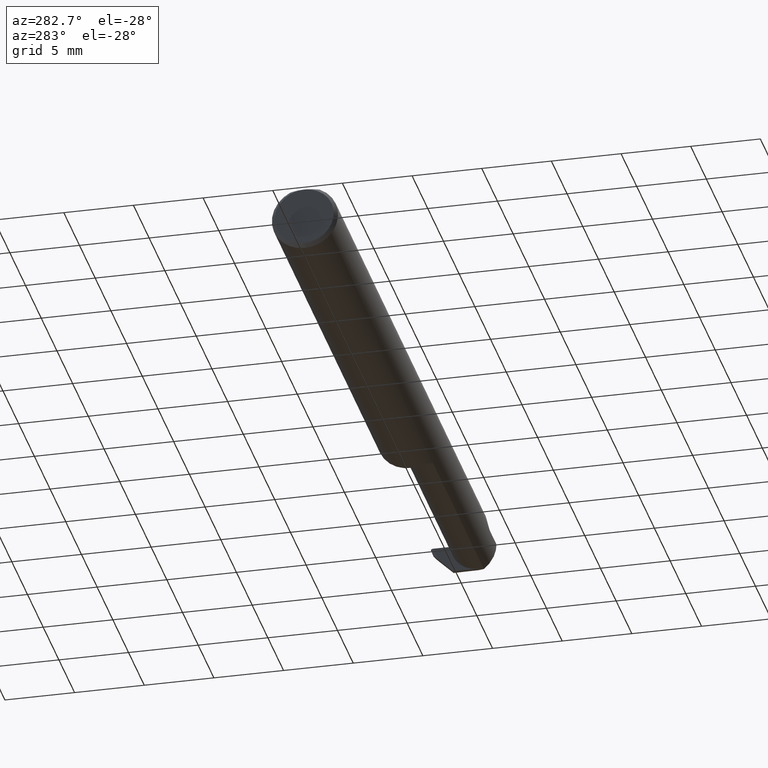
[diagram: clean part render]
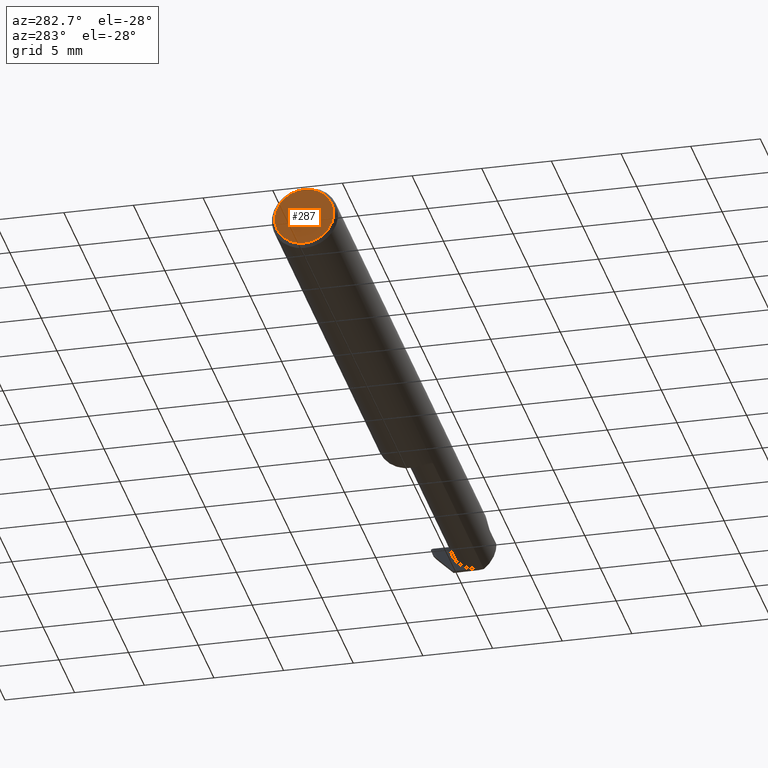
[diagram: same view with one face highlighted and labeled with its STEP entity id]
A machine part, auxiliary view. The second image highlights one B-rep face of the part: STEP entity #287.
In plain terms, the highlighted planar face has unit normal (1, 0, 0).
Its self-contained STEP definition (entity closure, byte-faithful):
#23 = FACE_OUTER_BOUND ( 'NONE', #46, .T. ) ;
#46 = EDGE_LOOP ( 'NONE', ( #376, #710 ) ) ;
#103 = DIRECTION ( 'NONE',  ( 0.000000000000000000, 0.000000000000000000, -1.000000000000000000 ) ) ;
#106 = DIRECTION ( 'NONE',  ( 0.000000000000000000, 0.000000000000000000, -1.000000000000000000 ) ) ;
#119 = DIRECTION ( 'NONE',  ( -1.000000000000000000, -0.000000000000000000, -0.000000000000000000 ) ) ;
#169 = AXIS2_PLACEMENT_3D ( 'NONE', #304, #555, #285 ) ;
#218 = AXIS2_PLACEMENT_3D ( 'NONE', #392, #266, #103 ) ;
#266 = DIRECTION ( 'NONE',  ( 1.000000000000000000, 0.000000000000000000, 0.000000000000000000 ) ) ;
#285 = DIRECTION ( 'NONE',  ( 0.000000000000000000, 0.000000000000000000, -1.000000000000000000 ) ) ;
#287 = ADVANCED_FACE ( 'NONE', ( #23 ), #708, .F. ) ;
#304 = CARTESIAN_POINT ( 'NONE',  ( 0.000000000000000000, 0.000000000000000000, 0.000000000000000000 ) ) ;
#321 = VERTEX_POINT ( 'NONE', #480 ) ;
#376 = ORIENTED_EDGE ( 'NONE', *, *, #566, .T. ) ;
#392 = CARTESIAN_POINT ( 'NONE',  ( 0.000000000000000000, 0.000000000000000000, 0.000000000000000000 ) ) ;
#443 = AXIS2_PLACEMENT_3D ( 'NONE', #539, #119, #106 ) ;
#480 = CARTESIAN_POINT ( 'NONE',  ( 0.000000000000000000, 0.000000000000000000, 0.08359999999999991049 ) ) ;
#539 = CARTESIAN_POINT ( 'NONE',  ( 0.000000000000000000, 0.000000000000000000, 0.000000000000000000 ) ) ;
#555 = DIRECTION ( 'NONE',  ( -1.000000000000000000, -0.000000000000000000, -0.000000000000000000 ) ) ;
#558 = CARTESIAN_POINT ( 'NONE',  ( 0.000000000000000000, 0.000000000000000000, -0.08360000000000017417 ) ) ;
#566 = EDGE_CURVE ( 'NONE', #321, #785, #752, .T. ) ;
#599 = EDGE_CURVE ( 'NONE', #785, #321, #699, .T. ) ;
#699 = CIRCLE ( 'NONE', #443, 0.08360000000000017417 ) ;
#708 = PLANE ( 'NONE',  #218 ) ;
#710 = ORIENTED_EDGE ( 'NONE', *, *, #599, .T. ) ;
#752 = CIRCLE ( 'NONE', #169, 0.08360000000000017417 ) ;
#785 = VERTEX_POINT ( 'NONE', #558 ) ;